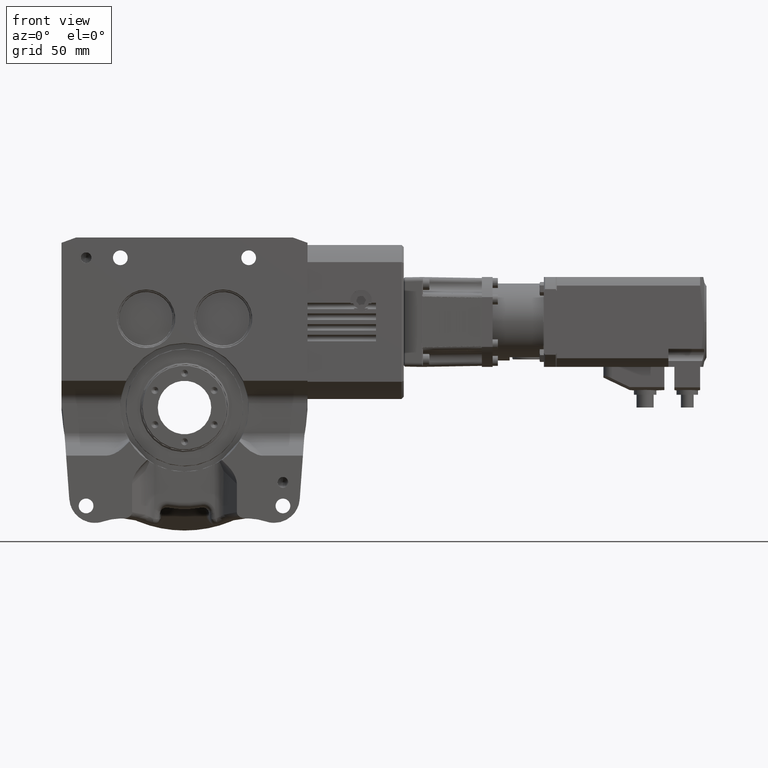
[diagram: clean part render]
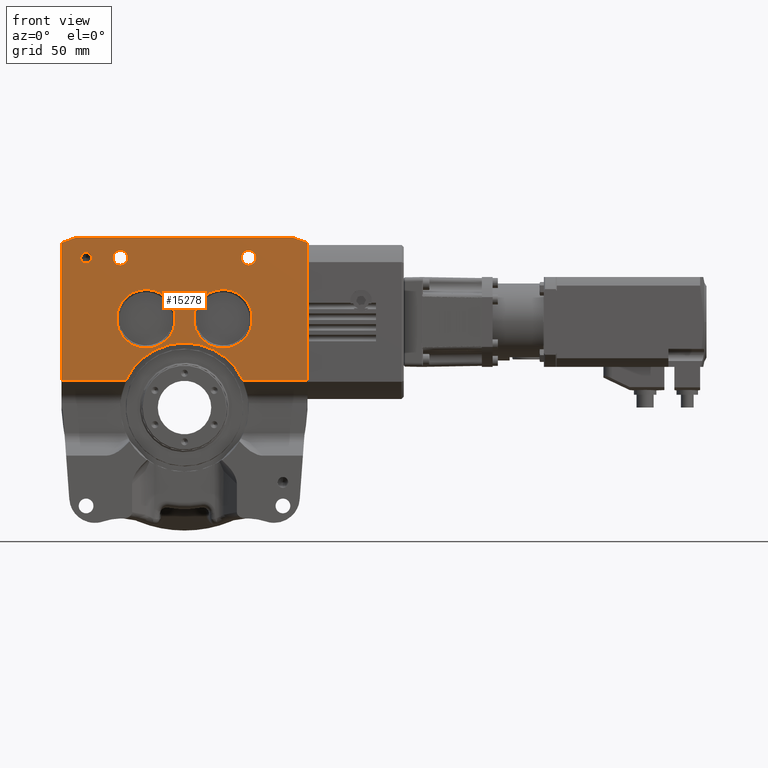
[diagram: same view with one face highlighted and labeled with its STEP entity id]
A machine part, front view. The second image highlights one B-rep face of the part: STEP entity #15278.
In plain terms, the highlighted planar face has unit normal (-0, 1, 0).
Its self-contained STEP definition (entity closure, byte-faithful):
#28 = EDGE_CURVE ( 'NONE', #47009, #30593, #55618, .T. ) ;
#402 = DIRECTION ( 'NONE',  ( 0.000000000000000000, 0.000000000000000000, -1.000000000000000000 ) ) ;
#1179 = DIRECTION ( 'NONE',  ( 0.000000000000000000, 0.000000000000000000, -1.000000000000000000 ) ) ;
#1720 = DIRECTION ( 'NONE',  ( 0.000000000000000000, 0.000000000000000000, -1.000000000000000000 ) ) ;
#1725 = CIRCLE ( 'NONE', #60352, 13.70000000000000107 ) ;
#2115 = VECTOR ( 'NONE', #74524, 1000.000000000000000 ) ;
#2254 = CIRCLE ( 'NONE', #55829, 3.454999999999999627 ) ;
#2517 = CARTESIAN_POINT ( 'NONE',  ( 57.50000000000000000, -32.50000000000000000, 77.00000000000000000 ) ) ;
#2786 = DIRECTION ( 'NONE',  ( 0.000000000000000000, 0.000000000000000000, -1.000000000000000000 ) ) ;
#2802 = FACE_BOUND ( 'NONE', #74132, .T. ) ;
#3352 = DIRECTION ( 'NONE',  ( 0.000000000000000000, -1.000000000000000000, 0.000000000000000000 ) ) ;
#3964 = AXIS2_PLACEMENT_3D ( 'NONE', #77308, #60086, #11795 ) ;
#4661 = DIRECTION ( 'NONE',  ( 0.000000000000000000, 0.000000000000000000, -1.000000000000000000 ) ) ;
#5647 = VERTEX_POINT ( 'NONE', #13188 ) ;
#5762 = CARTESIAN_POINT ( 'NONE',  ( 0.000000000000000000, -32.50000000000000000, 0.000000000000000000 ) ) ;
#5952 = VERTEX_POINT ( 'NONE', #41063 ) ;
#6069 = AXIS2_PLACEMENT_3D ( 'NONE', #57490, #26397, #2786 ) ;
#6923 = DIRECTION ( 'NONE',  ( -1.000000000000000000, -2.297646988048750896E-16, 0.000000000000000000 ) ) ;
#7089 = LINE ( 'NONE', #27044, #20926 ) ;
#7709 = CARTESIAN_POINT ( 'NONE',  ( 18.00000000000000000, -32.50000000000000000, 41.50000000000000000 ) ) ;
#8932 = DIRECTION ( 'NONE',  ( 0.000000000000000000, 0.000000000000000000, -1.000000000000000000 ) ) ;
#9141 = VERTEX_POINT ( 'NONE', #46802 ) ;
#9197 = AXIS2_PLACEMENT_3D ( 'NONE', #7709, #43268, #14522 ) ;
#9721 = CARTESIAN_POINT ( 'NONE',  ( 57.50000000000000000, -32.50000000000000000, 79.50000000000000000 ) ) ;
#10336 = VERTEX_POINT ( 'NONE', #16204 ) ;
#10401 = EDGE_CURVE ( 'NONE', #45546, #5952, #64040, .T. ) ;
#10793 = CARTESIAN_POINT ( 'NONE',  ( -57.50000000000000000, -32.50000000000000000, 12.50000000000000000 ) ) ;
#10919 = LINE ( 'NONE', #9721, #77931 ) ;
#11398 = VECTOR ( 'NONE', #71227, 1000.000000000000000 ) ;
#11795 = DIRECTION ( 'NONE',  ( 0.000000000000000000, 0.000000000000000000, -1.000000000000000000 ) ) ;
#12082 = CARTESIAN_POINT ( 'NONE',  ( 18.00000000000000000, -32.50000000000000000, 55.19999999999999574 ) ) ;
#12561 = EDGE_CURVE ( 'NONE', #5647, #30991, #59350, .T. ) ;
#12844 = ORIENTED_EDGE ( 'NONE', *, *, #75383, .F. ) ;
#12905 = CIRCLE ( 'NONE', #51124, 3.454999999999999627 ) ;
#13176 = DIRECTION ( 'NONE',  ( 0.000000000000000000, -1.000000000000000000, 0.000000000000000000 ) ) ;
#13188 = CARTESIAN_POINT ( 'NONE',  ( -57.50000000000000000, -32.50000000000000000, 77.00000000000000000 ) ) ;
#13204 = ORIENTED_EDGE ( 'NONE', *, *, #22836, .T. ) ;
#14341 = VERTEX_POINT ( 'NONE', #71164 ) ;
#14522 = DIRECTION ( 'NONE',  ( -1.000000000000000000, 0.000000000000000000, 0.000000000000000000 ) ) ;
#15105 = VERTEX_POINT ( 'NONE', #23255 ) ;
#15278 = ADVANCED_FACE ( 'NONE', ( #68320, #57502, #32371, #2802, #26408, #38757 ), #39151, .F. ) ;
#15306 = CARTESIAN_POINT ( 'NONE',  ( -18.00000000000000000, -32.50000000000000000, 55.19999999999999574 ) ) ;
#15461 = CARTESIAN_POINT ( 'NONE',  ( 47.42251182400080012, -32.50000000000000000, 115.1886712083791906 ) ) ;
#15551 = EDGE_CURVE ( 'NONE', #10336, #9141, #2254, .T. ) ;
#16080 = CIRCLE ( 'NONE', #74714, 2.500000000000002220 ) ;
#16146 = LINE ( 'NONE', #35274, #11398 ) ;
#16204 = CARTESIAN_POINT ( 'NONE',  ( -30.00000000000000000, -32.50000000000000000, 66.54500000000000171 ) ) ;
#16420 = CARTESIAN_POINT ( 'NONE',  ( 18.00000000000000000, -32.50000000000000000, 41.50000000000000000 ) ) ;
#17162 = CIRCLE ( 'NONE', #45176, 30.20000000000000284 ) ;
#17934 = VERTEX_POINT ( 'NONE', #46357 ) ;
#18361 = CARTESIAN_POINT ( 'NONE',  ( -30.00000000000000000, -32.50000000000000000, 70.00000000000000000 ) ) ;
#18718 = ORIENTED_EDGE ( 'NONE', *, *, #28, .T. ) ;
#19246 = CARTESIAN_POINT ( 'NONE',  ( 27.49163509142375261, -32.50000000000000000, 12.50000000000000000 ) ) ;
#19474 = DIRECTION ( 'NONE',  ( -0.9396926207859105373, -1.133987373550949383E-16, 0.3420201433256628287 ) ) ;
#19549 = EDGE_CURVE ( 'NONE', #66643, #33051, #10919, .T. ) ;
#20926 = VECTOR ( 'NONE', #19474, 1000.000000000000000 ) ;
#21087 = ORIENTED_EDGE ( 'NONE', *, *, #68647, .T. ) ;
#21345 = CARTESIAN_POINT ( 'NONE',  ( -46.00000000000000000, -32.50000000000000000, 67.50000000000000000 ) ) ;
#22736 = VERTEX_POINT ( 'NONE', #47406 ) ;
#22836 = EDGE_CURVE ( 'NONE', #30991, #15105, #78922, .T. ) ;
#23255 = CARTESIAN_POINT ( 'NONE',  ( -27.49163509142375261, -32.50000000000000000, 12.50000000000000000 ) ) ;
#23510 = EDGE_LOOP ( 'NONE', ( #38242, #55156 ) ) ;
#25387 = EDGE_CURVE ( 'NONE', #30593, #47009, #62171, .T. ) ;
#25425 = CARTESIAN_POINT ( 'NONE',  ( 57.50000000000000000, -32.50000000000000000, 12.50000000000000000 ) ) ;
#25533 = ORIENTED_EDGE ( 'NONE', *, *, #71160, .T. ) ;
#25689 = ORIENTED_EDGE ( 'NONE', *, *, #33226, .F. ) ;
#26397 = DIRECTION ( 'NONE',  ( 0.000000000000000000, -1.000000000000000000, 0.000000000000000000 ) ) ;
#26408 = FACE_BOUND ( 'NONE', #61191, .T. ) ;
#27044 = CARTESIAN_POINT ( 'NONE',  ( 54.12504365534089601, -32.50000000000000000, 78.22838365140380290 ) ) ;
#27178 = EDGE_CURVE ( 'NONE', #30782, #22736, #16146, .T. ) ;
#27388 = AXIS2_PLACEMENT_3D ( 'NONE', #66690, #13176, #1179 ) ;
#28579 = VERTEX_POINT ( 'NONE', #32719 ) ;
#30104 = ORIENTED_EDGE ( 'NONE', *, *, #55451, .F. ) ;
#30593 = VERTEX_POINT ( 'NONE', #15306 ) ;
#30782 = VERTEX_POINT ( 'NONE', #19246 ) ;
#30991 = VERTEX_POINT ( 'NONE', #10793 ) ;
#31036 = CARTESIAN_POINT ( 'NONE',  ( -18.00000000000000000, -32.50000000000000000, 41.50000000000000000 ) ) ;
#31248 = CARTESIAN_POINT ( 'NONE',  ( -18.00000000000000000, -32.50000000000000000, 27.79999999999999716 ) ) ;
#32371 = FACE_BOUND ( 'NONE', #32402, .T. ) ;
#32388 = ORIENTED_EDGE ( 'NONE', *, *, #27178, .T. ) ;
#32402 = EDGE_LOOP ( 'NONE', ( #58092, #37783 ) ) ;
#32620 = DIRECTION ( 'NONE',  ( -0.9396926207859105373, -1.133987373550949383E-16, -0.3420201433256628287 ) ) ;
#32719 = CARTESIAN_POINT ( 'NONE',  ( -46.00000000000000000, -32.50000000000000000, 72.50000000000000000 ) ) ;
#32751 = DIRECTION ( 'NONE',  ( 1.000000000000000000, 0.000000000000000000, 1.206764157201255812E-16 ) ) ;
#33051 = VERTEX_POINT ( 'NONE', #69252 ) ;
#33226 = EDGE_CURVE ( 'NONE', #17934, #14341, #12905, .T. ) ;
#35265 = DIRECTION ( 'NONE',  ( -1.000000000000000000, -1.206764157201255812E-16, 0.000000000000000000 ) ) ;
#35274 = CARTESIAN_POINT ( 'NONE',  ( 57.50000000000000000, -32.50000000000000000, 12.50000000000000000 ) ) ;
#35393 = CARTESIAN_POINT ( 'NONE',  ( -57.50000000000000000, -32.50000000000000000, 87.50099999999999056 ) ) ;
#35604 = EDGE_CURVE ( 'NONE', #5952, #45546, #1725, .T. ) ;
#36468 = AXIS2_PLACEMENT_3D ( 'NONE', #66004, #52839, #40844 ) ;
#36895 = EDGE_LOOP ( 'NONE', ( #18718, #43520 ) ) ;
#37009 = AXIS2_PLACEMENT_3D ( 'NONE', #75494, #50737, #32751 ) ;
#37699 = EDGE_CURVE ( 'NONE', #74279, #66643, #7089, .T. ) ;
#37783 = ORIENTED_EDGE ( 'NONE', *, *, #10401, .T. ) ;
#38049 = LINE ( 'NONE', #56396, #41917 ) ;
#38242 = ORIENTED_EDGE ( 'NONE', *, *, #15551, .F. ) ;
#38757 = FACE_BOUND ( 'NONE', #23510, .T. ) ;
#39151 = PLANE ( 'NONE',  #37009 ) ;
#39987 = ORIENTED_EDGE ( 'NONE', *, *, #12561, .T. ) ;
#40844 = DIRECTION ( 'NONE',  ( -1.000000000000000000, 0.000000000000000000, 0.000000000000000000 ) ) ;
#41063 = CARTESIAN_POINT ( 'NONE',  ( 18.00000000000000000, -32.50000000000000000, 27.79999999999999716 ) ) ;
#41327 = EDGE_CURVE ( 'NONE', #14341, #17934, #77140, .T. ) ;
#41516 = DIRECTION ( 'NONE',  ( 0.000000000000000000, 0.000000000000000000, -1.000000000000000000 ) ) ;
#41917 = VECTOR ( 'NONE', #1720, 1000.000000000000000 ) ;
#42951 = VECTOR ( 'NONE', #32620, 1000.000000000000000 ) ;
#43049 = ORIENTED_EDGE ( 'NONE', *, *, #41327, .F. ) ;
#43084 = DIRECTION ( 'NONE',  ( 0.000000000000000000, -1.000000000000000000, 0.000000000000000000 ) ) ;
#43268 = DIRECTION ( 'NONE',  ( 0.000000000000000000, 1.000000000000000000, 0.000000000000000000 ) ) ;
#43520 = ORIENTED_EDGE ( 'NONE', *, *, #25387, .T. ) ;
#45176 = AXIS2_PLACEMENT_3D ( 'NONE', #5762, #49266, #6923 ) ;
#45546 = VERTEX_POINT ( 'NONE', #12082 ) ;
#46357 = CARTESIAN_POINT ( 'NONE',  ( 30.00000000000000000, -32.50000000000000000, 66.54500000000000171 ) ) ;
#46802 = CARTESIAN_POINT ( 'NONE',  ( -30.00000000000000000, -32.50000000000000000, 73.45500000000001251 ) ) ;
#47009 = VERTEX_POINT ( 'NONE', #31248 ) ;
#47406 = CARTESIAN_POINT ( 'NONE',  ( 57.50000000000000000, -32.50000000000000000, 12.50000000000000000 ) ) ;
#47780 = VERTEX_POINT ( 'NONE', #21345 ) ;
#49266 = DIRECTION ( 'NONE',  ( -2.297646988048749910E-16, 1.000000000000000000, 0.000000000000000000 ) ) ;
#50737 = DIRECTION ( 'NONE',  ( -1.757386182356993278E-48, 1.000000000000000000, 1.456279731105660053E-32 ) ) ;
#51124 = AXIS2_PLACEMENT_3D ( 'NONE', #63630, #3352, #8932 ) ;
#52839 = DIRECTION ( 'NONE',  ( 0.000000000000000000, 1.000000000000000000, 0.000000000000000000 ) ) ;
#55156 = ORIENTED_EDGE ( 'NONE', *, *, #58461, .F. ) ;
#55376 = DIRECTION ( 'NONE',  ( 0.000000000000000000, 1.000000000000000000, 0.000000000000000000 ) ) ;
#55451 = EDGE_CURVE ( 'NONE', #47780, #28579, #16080, .T. ) ;
#55618 = CIRCLE ( 'NONE', #36468, 13.70000000000000107 ) ;
#55829 = AXIS2_PLACEMENT_3D ( 'NONE', #18361, #43084, #41516 ) ;
#56396 = CARTESIAN_POINT ( 'NONE',  ( 57.50000000000000000, -32.50000000000000000, 87.50099999999999056 ) ) ;
#57490 = CARTESIAN_POINT ( 'NONE',  ( -30.00000000000000000, -32.50000000000000000, 70.00000000000000000 ) ) ;
#57502 = FACE_BOUND ( 'NONE', #36895, .T. ) ;
#58092 = ORIENTED_EDGE ( 'NONE', *, *, #35604, .T. ) ;
#58461 = EDGE_CURVE ( 'NONE', #9141, #10336, #74937, .T. ) ;
#59350 = LINE ( 'NONE', #35393, #68154 ) ;
#60086 = DIRECTION ( 'NONE',  ( 0.000000000000000000, -1.000000000000000000, 0.000000000000000000 ) ) ;
#60331 = EDGE_LOOP ( 'NONE', ( #13204, #21087, #32388, #77740, #75347, #74213, #25533, #39987 ) ) ;
#60352 = AXIS2_PLACEMENT_3D ( 'NONE', #16420, #77874, #63904 ) ;
#61191 = EDGE_LOOP ( 'NONE', ( #25689, #43049 ) ) ;
#62171 = CIRCLE ( 'NONE', #71139, 13.70000000000000107 ) ;
#62605 = CIRCLE ( 'NONE', #3964, 2.500000000000002220 ) ;
#63630 = CARTESIAN_POINT ( 'NONE',  ( 30.00000000000000000, -32.50000000000000000, 70.00000000000000000 ) ) ;
#63904 = DIRECTION ( 'NONE',  ( -1.000000000000000000, 0.000000000000000000, 0.000000000000000000 ) ) ;
#64040 = CIRCLE ( 'NONE', #9197, 13.70000000000000107 ) ;
#64140 = LINE ( 'NONE', #15461, #42951 ) ;
#66004 = CARTESIAN_POINT ( 'NONE',  ( -18.00000000000000000, -32.50000000000000000, 41.50000000000000000 ) ) ;
#66643 = VERTEX_POINT ( 'NONE', #73977 ) ;
#66690 = CARTESIAN_POINT ( 'NONE',  ( 30.00000000000000000, -32.50000000000000000, 70.00000000000000000 ) ) ;
#67865 = DIRECTION ( 'NONE',  ( 0.000000000000000000, -1.000000000000000000, 0.000000000000000000 ) ) ;
#68154 = VECTOR ( 'NONE', #4661, 1000.000000000000000 ) ;
#68320 = FACE_OUTER_BOUND ( 'NONE', #60331, .T. ) ;
#68647 = EDGE_CURVE ( 'NONE', #15105, #30782, #17162, .T. ) ;
#69252 = CARTESIAN_POINT ( 'NONE',  ( -50.63130645136330088, -32.50000000000000000, 79.50000000000000000 ) ) ;
#71139 = AXIS2_PLACEMENT_3D ( 'NONE', #31036, #55376, #78563 ) ;
#71160 = EDGE_CURVE ( 'NONE', #33051, #5647, #64140, .T. ) ;
#71164 = CARTESIAN_POINT ( 'NONE',  ( 30.00000000000000000, -32.50000000000000000, 73.45500000000001251 ) ) ;
#71227 = DIRECTION ( 'NONE',  ( 1.000000000000000000, 1.206764157201255812E-16, -1.206764157201269864E-16 ) ) ;
#73035 = EDGE_CURVE ( 'NONE', #74279, #22736, #38049, .T. ) ;
#73876 = CARTESIAN_POINT ( 'NONE',  ( -46.00000000000000000, -32.50000000000000000, 70.00000000000000000 ) ) ;
#73977 = CARTESIAN_POINT ( 'NONE',  ( 50.63130645136330088, -32.50000000000000000, 79.50000000000000000 ) ) ;
#74132 = EDGE_LOOP ( 'NONE', ( #30104, #12844 ) ) ;
#74213 = ORIENTED_EDGE ( 'NONE', *, *, #19549, .T. ) ;
#74279 = VERTEX_POINT ( 'NONE', #2517 ) ;
#74524 = DIRECTION ( 'NONE',  ( 1.000000000000000000, 1.206764157201255812E-16, -1.206764157201269864E-16 ) ) ;
#74714 = AXIS2_PLACEMENT_3D ( 'NONE', #73876, #67865, #402 ) ;
#74937 = CIRCLE ( 'NONE', #6069, 3.454999999999999627 ) ;
#75347 = ORIENTED_EDGE ( 'NONE', *, *, #37699, .T. ) ;
#75383 = EDGE_CURVE ( 'NONE', #28579, #47780, #62605, .T. ) ;
#75494 = CARTESIAN_POINT ( 'NONE',  ( 57.50000000000000000, -32.50000000000000000, 87.50099999999999056 ) ) ;
#77140 = CIRCLE ( 'NONE', #27388, 3.454999999999999627 ) ;
#77308 = CARTESIAN_POINT ( 'NONE',  ( -46.00000000000000000, -32.50000000000000000, 70.00000000000000000 ) ) ;
#77740 = ORIENTED_EDGE ( 'NONE', *, *, #73035, .F. ) ;
#77874 = DIRECTION ( 'NONE',  ( 0.000000000000000000, 1.000000000000000000, 0.000000000000000000 ) ) ;
#77931 = VECTOR ( 'NONE', #35265, 1000.000000000000000 ) ;
#78563 = DIRECTION ( 'NONE',  ( -1.000000000000000000, 0.000000000000000000, 0.000000000000000000 ) ) ;
#78922 = LINE ( 'NONE', #25425, #2115 ) ;